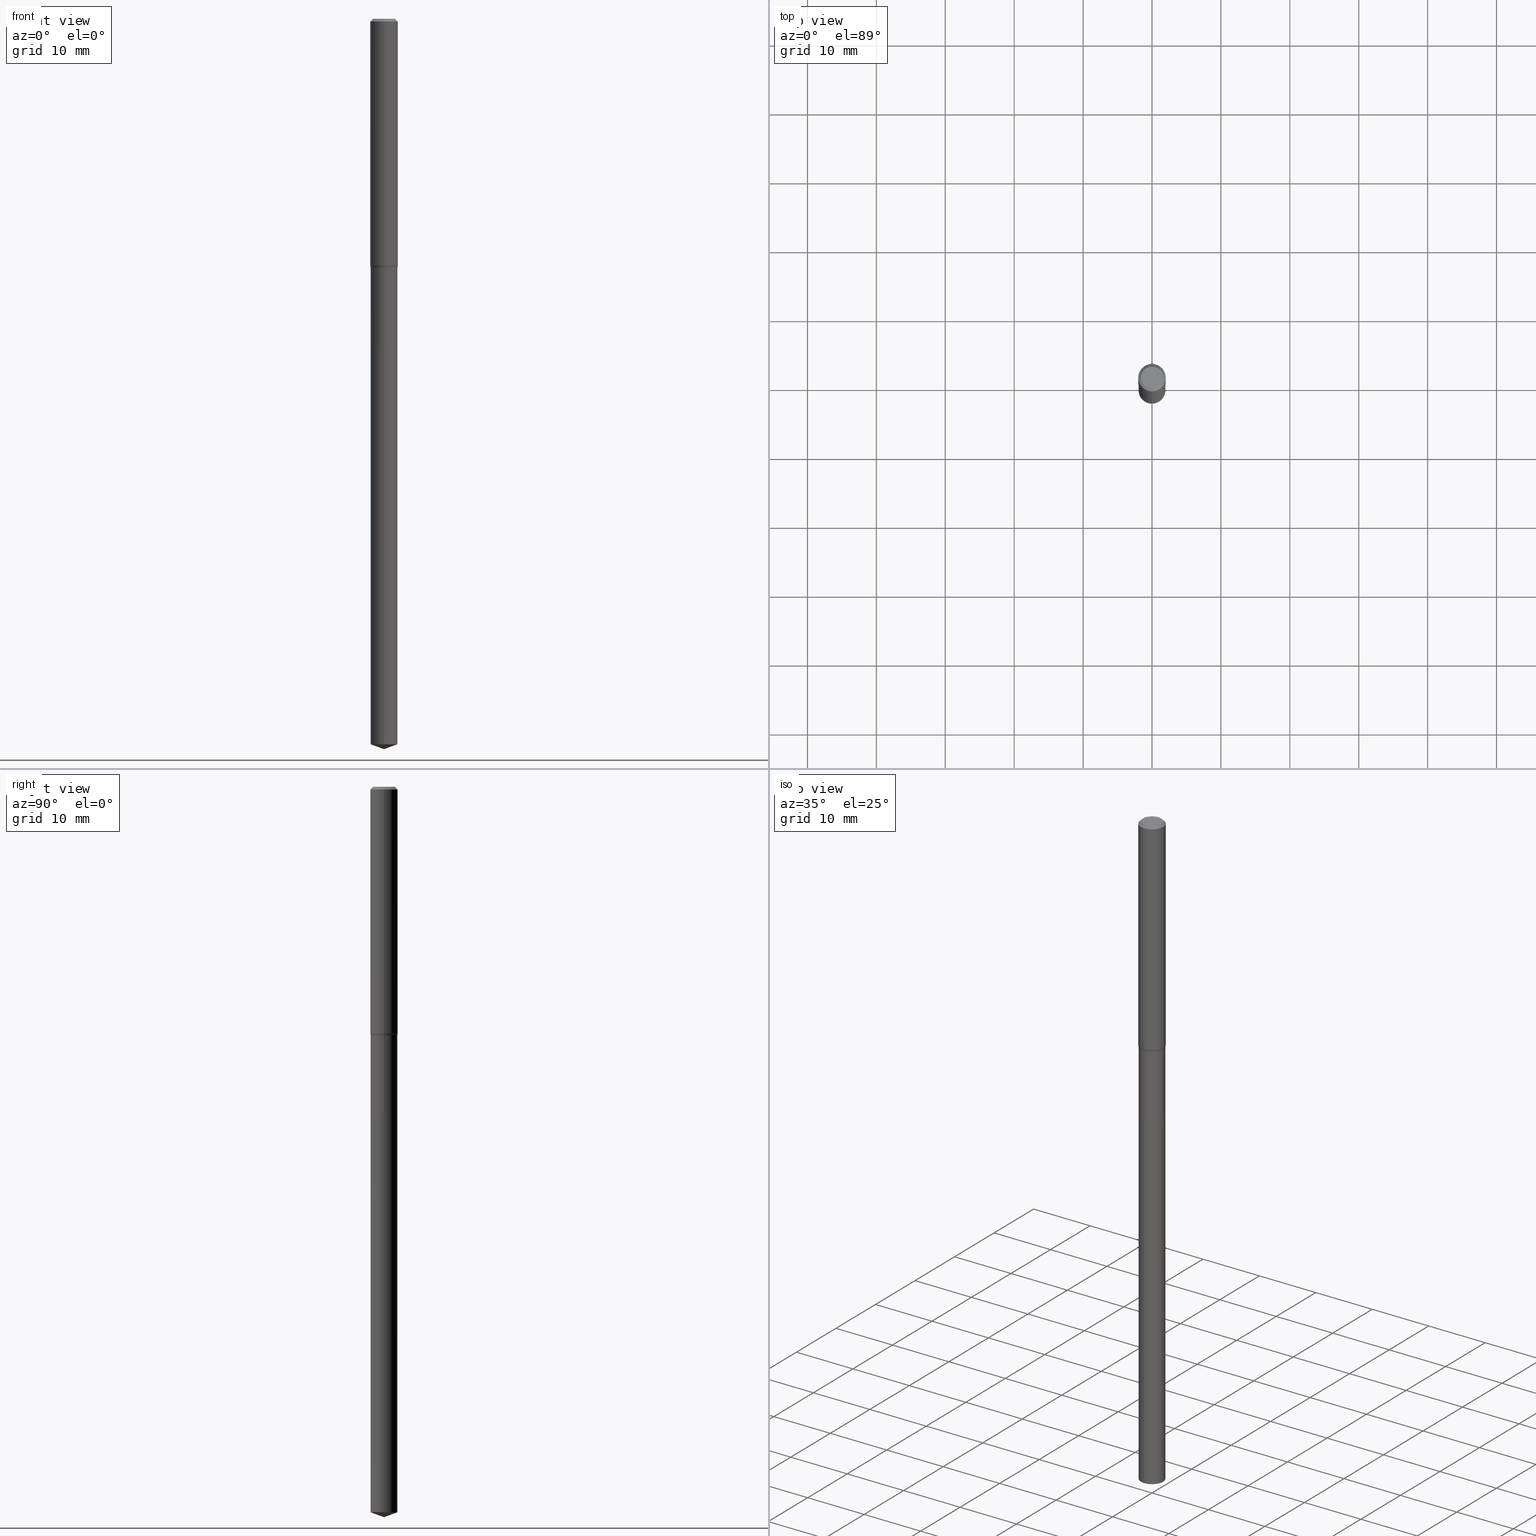
[diagram: canonical four-view strip — front | top / right | iso, engineering-drawing reading convention]
A machine part, canonical four-view strip (front | top / right | iso — engineering-drawing reading convention). The complete STEP part file that produces these views, byte-faithful:
ISO-10303-21;
HEADER;
FILE_DESCRIPTION (( 'STEP AP203' ),
    '1' );
FILE_NAME ('06060.STEP',
    '2024-04-23T19:11:56',
    ( '' ),
    ( '' ),
    'SwSTEP 2.0',
    'SolidWorks 2023',
    '' );
FILE_SCHEMA (( 'CONFIG_CONTROL_DESIGN' ));
ENDSEC;

DATA;
#1 = EDGE_CURVE ( 'NONE', #170, #132, #441, .T. ) ;
#2 = EDGE_LOOP ( 'NONE', ( #213, #395, #437, #322 ) ) ;
#3 = DIRECTION ( 'NONE',  ( -2.445468806185136597E-29, 3.491481338843145583E-15, 1.000000000000000000 ) ) ;
#4 = CC_DESIGN_DATE_AND_TIME_ASSIGNMENT ( #445, #174, ( #446 ) ) ;
#5 = AXIS2_PLACEMENT_3D ( 'NONE', #307, #48, #352 ) ;
#6 = CIRCLE ( 'NONE', #251, 0.07625000000000001221 ) ;
#7 = DIRECTION ( 'NONE',  ( 1.000000000000000000, -6.982962677686267499E-15, 4.876176775795935232E-29 ) ) ;
#8 = PRODUCT_DEFINITION_SHAPE ( 'NONE', 'NONE',  #446 ) ;
#9 = ADVANCED_FACE ( 'NONE', ( #155 ), #118, .T. ) ;
#10 = FACE_OUTER_BOUND ( 'NONE', #389, .T. ) ;
#11 = CARTESIAN_POINT ( 'NONE',  ( 4.563489339222081719E-29, -6.515453326415191210E-15, -1.866099999999999204 ) ) ;
#12 = DIRECTION ( 'NONE',  ( 1.000000000000000000, -6.982962677686265133E-15, 0.000000000000000000 ) ) ;
#13 = FACE_OUTER_BOUND ( 'NONE', #400, .T. ) ;
#14 = CIRCLE ( 'NONE', #223, 0.07875000000000016709 ) ;
#15 = ORIENTED_EDGE ( 'NONE', *, *, #54, .F. ) ;
#16 = DATE_AND_TIME ( #206, #212 ) ;
#17 = EDGE_LOOP ( 'NONE', ( #305, #157, #215 ) ) ;
#18 = APPROVAL ( #137, 'UNSPECIFIED' ) ;
#19 = ORIENTED_EDGE ( 'NONE', *, *, #246, .F. ) ;
#20 = PERSON_AND_ORGANIZATION ( #413, #91 ) ;
#21 = VERTEX_POINT ( 'NONE', #311 ) ;
#22 = AXIS2_PLACEMENT_3D ( 'NONE', #348, #345, #7 ) ;
#23 = LINE ( 'NONE', #60, #250 ) ;
#24 = APPROVAL_ROLE ( '' ) ;
#25 = APPROVAL ( #261, 'UNSPECIFIED' ) ;
#26 = CARTESIAN_POINT ( 'NONE',  ( 3.449176992623886773E-29, -4.924510618845209310E-15, -1.410435898384861053 ) ) ;
#27 = APPROVAL_ROLE ( '' ) ;
#28 = AXIS2_PLACEMENT_3D ( 'NONE', #404, #33, #108 ) ;
#29 = DIRECTION ( 'NONE',  ( 1.000000000000000000, -6.982962677686265922E-15, 0.000000000000000000 ) ) ;
#30 = UNCERTAINTY_MEASURE_WITH_UNIT (LENGTH_MEASURE( 1.000000000000000082E-05 ), #325, 'distance_accuracy_value', 'NONE');
#31 = DATE_TIME_ROLE ( 'classification_date' ) ;
#32 = CARTESIAN_POINT ( 'NONE',  ( 4.563489339222081719E-29, -6.515453326415191210E-15, -1.866099999999999204 ) ) ;
#33 = DIRECTION ( 'NONE',  ( -2.445468806185136597E-29, 3.491481338843145583E-15, 1.000000000000000000 ) ) ;
#34 = ORIENTED_EDGE ( 'NONE', *, *, #54, .T. ) ;
#35 = DIRECTION ( 'NONE',  ( -6.982962677686265133E-15, -1.000000000000000000, 3.559411066663534686E-15 ) ) ;
#36 = VECTOR ( 'NONE', #117, 39.37007874015748143 ) ;
#37 = CARTESIAN_POINT ( 'NONE',  ( -8.607162650711505623E-28, 1.228910246761990339E-13, 35.19687874015748008 ) ) ;
#38 = CC_DESIGN_PERSON_AND_ORGANIZATION_ASSIGNMENT ( #20, #126, ( #446 ) ) ;
#39 = DIRECTION ( 'NONE',  ( -2.438088387897960049E-29, 3.491481338843145188E-15, 1.000000000000000000 ) ) ;
#40 = ORIENTED_EDGE ( 'NONE', *, *, #297, .F. ) ;
#41 = CARTESIAN_POINT ( 'NONE',  ( 5.453415496959783512E-16, 0.07674999999998556588, -4.145265284520068150 ) ) ;
#42 = EDGE_CURVE ( 'NONE', #387, #194, #390, .T. ) ;
#43 = ORIENTED_EDGE ( 'NONE', *, *, #360, .T. ) ;
#44 = CIRCLE ( 'NONE', #66, 0.07675000000000001266 ) ;
#45 = CONICAL_SURFACE ( 'NONE', #230, 0.07625000000000001221, 0.7853981633975507526 ) ;
#46 = DIRECTION ( 'NONE',  ( -2.445435281437177479E-29, 3.491529348190333241E-15, 1.000000000000000000 ) ) ;
#47 = PLANE ( 'NONE',  #268 ) ;
#48 = DIRECTION ( 'NONE',  ( -2.445468806185136597E-29, 3.491481338843145583E-15, 1.000000000000000000 ) ) ;
#49 = CYLINDRICAL_SURFACE ( 'NONE', #263, 0.07674999999999997102 ) ;
#50 = AXIS2_PLACEMENT_3D ( 'NONE', #109, #159, #410 ) ;
#51 = VERTEX_POINT ( 'NONE', #346 ) ;
#52 = VECTOR ( 'NONE', #386, 39.37007874015748143 ) ;
#53 = PRODUCT_RELATED_PRODUCT_CATEGORY ( 'detail', '', ( #462 ) ) ;
#54 = EDGE_CURVE ( 'NONE', #170, #51, #23, .T. ) ;
#55 = AXIS2_PLACEMENT_3D ( 'NONE', #479, #450, #264 ) ;
#56 = CARTESIAN_POINT ( 'NONE',  ( 0.07674999999999994327, -5.486513775858115986E-15, -1.417899999999999716 ) ) ;
#57 = SECURITY_CLASSIFICATION ( '', '', #478 ) ;
#58 = CC_DESIGN_PERSON_AND_ORGANIZATION_ASSIGNMENT ( #328, #142, ( #83 ) ) ;
#59 = CARTESIAN_POINT ( 'NONE',  ( 4.713871149261278955E-47, -6.730158695841834933E-33, -1.927594061857933439E-18 ) ) ;
#60 = CARTESIAN_POINT ( 'NONE',  ( -0.07625000000000001221, -5.973664490398114535E-15, -1.866099999999999204 ) ) ;
#61 = CARTESIAN_POINT ( 'NONE',  ( 3.467430220289904224E-29, -4.950571390345695458E-15, -1.417899999999999716 ) ) ;
#62 = APPROVAL_DATE_TIME ( #334, #25 ) ;
#63 = ORIENTED_EDGE ( 'NONE', *, *, #145, .T. ) ;
#64 = DIRECTION ( 'NONE',  ( 1.000000000000000000, -6.982962677686271444E-15, 0.000000000000000000 ) ) ;
#65 = PERSON_AND_ORGANIZATION ( #413, #91 ) ;
#66 = AXIS2_PLACEMENT_3D ( 'NONE', #301, #375, #35 ) ;
#67 = CARTESIAN_POINT ( 'NONE',  ( -0.07875000000000016709, -4.364958214434130508E-15, -1.410435898384861053 ) ) ;
#68 = CIRCLE ( 'NONE', #139, 0.07674999999999994327 ) ;
#69 = EDGE_CURVE ( 'NONE', #347, #194, #367, .T. ) ;
#70 = CARTESIAN_POINT ( 'NONE',  ( -0.07674999999999994327, -4.405229840649818672E-15, -1.417899999999999716 ) ) ;
#71 = EDGE_CURVE ( 'NONE', #51, #421, #327, .T. ) ;
#72 = ORIENTED_EDGE ( 'NONE', *, *, #374, .T. ) ;
#73 = FACE_OUTER_BOUND ( 'NONE', #175, .T. ) ;
#74 = ORIENTED_EDGE ( 'NONE', *, *, #304, .T. ) ;
#75 = VECTOR ( 'NONE', #482, 39.37007874015748143 ) ;
#76 = CARTESIAN_POINT ( 'NONE',  ( 0.000000000000000000, 0.000000000000000000, 0.000000000000000000 ) ) ;
#77 = AXIS2_PLACEMENT_3D ( 'NONE', #316, #475, #280 ) ;
#78 = DIRECTION ( 'NONE',  ( -6.982962677686265133E-15, -1.000000000000000000, 3.559411066663534686E-15 ) ) ;
#79 = CARTESIAN_POINT ( 'NONE',  ( 0.07674999999999994327, -5.486513775858115986E-15, -1.417899999999999716 ) ) ;
#80 = ADVANCED_FACE ( 'NONE', ( #323 ), #94, .F. ) ;
#81 = DIRECTION ( 'NONE',  ( -2.445435281437177759E-29, 3.491529348190333241E-15, 1.000000000000000000 ) ) ;
#82 = CYLINDRICAL_SURFACE ( 'NONE', #355, 0.07675000000000001266 ) ;
#83 = PRODUCT_DEFINITION_FORMATION_WITH_SPECIFIED_SOURCE ( 'ANY', '', #462, .NOT_KNOWN. ) ;
#84 = LINE ( 'NONE', #465, #199 ) ;
#85 = CC_DESIGN_PERSON_AND_ORGANIZATION_ASSIGNMENT ( #331, #481, ( #83 ) ) ;
#86 = FACE_OUTER_BOUND ( 'NONE', #461, .T. ) ;
#87 = VERTEX_POINT ( 'NONE', #79 ) ;
#88 = DIRECTION ( 'NONE',  ( -2.445468806185136597E-29, 3.491481338843145583E-15, 1.000000000000000000 ) ) ;
#89 = ORIENTED_EDGE ( 'NONE', *, *, #448, .T. ) ;
#90 = APPLICATION_PROTOCOL_DEFINITION ( 'international standard', 'config_control_design', 1994, #110 ) ;
#91 = ORGANIZATION ( 'UNSPECIFIED', 'UNSPECIFIED', '' ) ;
#92 = LOCAL_TIME ( 15, 11, 56.00000000000000000, #295 ) ;
#93 = CARTESIAN_POINT ( 'NONE',  ( 0.07625000000000001221, -7.047904230588769520E-15, -1.866099999999999204 ) ) ;
#94 = PLANE ( 'NONE',  #396 ) ;
#95 = ORIENTED_EDGE ( 'NONE', *, *, #1, .T. ) ;
#96 = VECTOR ( 'NONE', #190, 39.37007874015748143 ) ;
#97 = EDGE_CURVE ( 'NONE', #183, #87, #144, .T. ) ;
#98 = ORIENTED_EDGE ( 'NONE', *, *, #480, .T. ) ;
#99 = AXIS2_PLACEMENT_3D ( 'NONE', #351, #200, #466 ) ;
#100 = EDGE_CURVE ( 'NONE', #194, #387, #259, .T. ) ;
#101 = ORIENTED_EDGE ( 'NONE', *, *, #226, .F. ) ;
#102 = CARTESIAN_POINT ( 'NONE',  ( -0.07625000000000001221, -5.971015263224003334E-15, -1.866099999999999204 ) ) ;
#103 = PERSON_AND_ORGANIZATION ( #413, #91 ) ;
#104 = FACE_OUTER_BOUND ( 'NONE', #332, .T. ) ;
#105 = CONICAL_SURFACE ( 'NONE', #329, 108.1684023407320154, 1.221730476396027276 ) ;
#106 = CARTESIAN_POINT ( 'NONE',  ( 0.07675000000000001266, -7.049649971258191813E-15, -1.865599999999999259 ) ) ;
#107 = CARTESIAN_POINT ( 'NONE',  ( 4.563489339222082280E-29, -6.515453326415192788E-15, -1.866099999999999426 ) ) ;
#108 = DIRECTION ( 'NONE',  ( 1.000000000000000000, -6.982962677686271444E-15, 0.000000000000000000 ) ) ;
#109 = CARTESIAN_POINT ( 'NONE',  ( 1.013704053821426034E-28, -1.447322580669358287E-14, -4.145265284520068150 ) ) ;
#110 = APPLICATION_CONTEXT ( 'configuration controlled 3d designs of mechanical parts and assemblies' ) ;
#111 = CONICAL_SURFACE ( 'NONE', #242, 0.07674999999999994327, 0.2617993877991501295 ) ;
#112 = DIRECTION ( 'NONE',  ( 2.445435281437177199E-29, -3.491529348190333241E-15, -1.000000000000000000 ) ) ;
#113 = AXIS2_PLACEMENT_3D ( 'NONE', #209, #281, #252 ) ;
#114 = PLANE ( 'NONE',  #341 ) ;
#115 = FACE_OUTER_BOUND ( 'NONE', #2, .T. ) ;
#116 = ORIENTED_EDGE ( 'NONE', *, *, #191, .T. ) ;
#117 = DIRECTION ( 'NONE',  ( -2.445435281437177759E-29, 3.491529348190333241E-15, 1.000000000000000000 ) ) ;
#118 = CONICAL_SURFACE ( 'NONE', #5, 0.07625000000000001221, 0.7853981633975507526 ) ;
#119 = AXIS2_PLACEMENT_3D ( 'NONE', #490, #151, #29 ) ;
#120 = VECTOR ( 'NONE', #289, 39.37007874015748854 ) ;
#121 = DIRECTION ( 'NONE',  ( 1.000000000000000000, -6.982962677686265133E-15, 0.000000000000000000 ) ) ;
#122 = VERTEX_POINT ( 'NONE', #335 ) ;
#123 = LINE ( 'NONE', #93, #276 ) ;
#124 = CC_DESIGN_DATE_AND_TIME_ASSIGNMENT ( #253, #31, ( #57 ) ) ;
#125 = ORIENTED_EDGE ( 'NONE', *, *, #370, .T. ) ;
#126 = PERSON_AND_ORGANIZATION_ROLE ( 'creator' ) ;
#127 = CONICAL_SURFACE ( 'NONE', #405, 108.1684023407320154, 1.221730476396027276 ) ;
#128 = EDGE_CURVE ( 'NONE', #21, #358, #333, .T. ) ;
#129 = DIRECTION ( 'NONE',  ( 0.2588190451025214611, 1.565188264969621573E-15, 0.9659258262890682012 ) ) ;
#130 = APPROVAL ( #431, 'UNSPECIFIED' ) ;
#131 =( GEOMETRIC_REPRESENTATION_CONTEXT ( 3 ) GLOBAL_UNCERTAINTY_ASSIGNED_CONTEXT ( ( #30 ) ) GLOBAL_UNIT_ASSIGNED_CONTEXT ( ( #325, #359, #248 ) ) REPRESENTATION_CONTEXT ( 'NONE', 'WORKASPACE' ) );
#132 = VERTEX_POINT ( 'NONE', #454 ) ;
#133 = ORIENTED_EDGE ( 'NONE', *, *, #448, .F. ) ;
#134 = ORIENTED_EDGE ( 'NONE', *, *, #42, .T. ) ;
#135 = DIRECTION ( 'NONE',  ( 0.7071067811866199593, -2.468850131083015945E-15, 0.7071067811864750752 ) ) ;
#136 = CONICAL_SURFACE ( 'NONE', #166, 0.07875000000000000056, 0.7853981633974452814 ) ;
#137 = APPROVAL_STATUS ( 'not_yet_approved' ) ;
#138 = APPLICATION_CONTEXT ( 'configuration controlled 3d designs of mechanical parts and assemblies' ) ;
#139 = AXIS2_PLACEMENT_3D ( 'NONE', #61, #438, #467 ) ;
#140 = COORDINATED_UNIVERSAL_TIME_OFFSET ( 5, 0, .BEHIND. ) ;
#141 = CYLINDRICAL_SURFACE ( 'NONE', #362, 0.07675000000000001266 ) ;
#142 = PERSON_AND_ORGANIZATION_ROLE ( 'design_supplier' ) ;
#143 = DIRECTION ( 'NONE',  ( -2.445468806185136597E-29, 3.491481338843145583E-15, 1.000000000000000000 ) ) ;
#144 = LINE ( 'NONE', #185, #96 ) ;
#145 = EDGE_CURVE ( 'NONE', #187, #21, #186, .T. ) ;
#146 = ORIENTED_EDGE ( 'NONE', *, *, #246, .T. ) ;
#147 = CARTESIAN_POINT ( 'NONE',  ( 9.427742298522557911E-47, -1.346031739168366987E-32, -3.855188123715866879E-18 ) ) ;
#148 = AXIS2_PLACEMENT_3D ( 'NONE', #270, #158, #388 ) ;
#149 = DIRECTION ( 'NONE',  ( 1.000000000000000000, -6.982962677686265922E-15, 4.875905316334701673E-29 ) ) ;
#150 = EDGE_LOOP ( 'NONE', ( #342, #134, #125, #19 ) ) ;
#151 = DIRECTION ( 'NONE',  ( -2.445468806185136597E-29, 3.491481338843145583E-15, 1.000000000000000000 ) ) ;
#152 = ORIENTED_EDGE ( 'NONE', *, *, #460, .F. ) ;
#153 = CARTESIAN_POINT ( 'NONE',  ( -5.359423855123753660E-16, -0.07675000000000652134, -1.866099999999999204 ) ) ;
#154 = FACE_OUTER_BOUND ( 'NONE', #208, .T. ) ;
#155 = FACE_OUTER_BOUND ( 'NONE', #198, .T. ) ;
#156 = LINE ( 'NONE', #233, #458 ) ;
#157 = ORIENTED_EDGE ( 'NONE', *, *, #433, .T. ) ;
#158 = DIRECTION ( 'NONE',  ( -2.445468806185136597E-29, 3.491481338843145583E-15, 1.000000000000000000 ) ) ;
#159 = DIRECTION ( 'NONE',  ( -2.445435281437177479E-29, 3.491529348190333241E-15, 1.000000000000000000 ) ) ;
#160 = LINE ( 'NONE', #302, #36 ) ;
#161 = ORIENTED_EDGE ( 'NONE', *, *, #360, .F. ) ;
#162 = CALENDAR_DATE ( 2024, 23, 4 ) ;
#163 = ADVANCED_FACE ( 'NONE', ( #337 ), #136, .T. ) ;
#164 = ORIENTED_EDGE ( 'NONE', *, *, #350, .F. ) ;
#165 = ADVANCED_FACE ( 'NONE', ( #73 ), #192, .T. ) ;
#166 = AXIS2_PLACEMENT_3D ( 'NONE', #377, #411, #296 ) ;
#167 = ORIENTED_EDGE ( 'NONE', *, *, #145, .F. ) ;
#168 = CC_DESIGN_APPROVAL ( #130, ( #446 ) ) ;
#169 = ADVANCED_FACE ( 'NONE', ( #409 ), #141, .T. ) ;
#170 = VERTEX_POINT ( 'NONE', #102 ) ;
#171 = DIRECTION ( 'NONE',  ( 1.000000000000000000, -6.982962677686271444E-15, 0.000000000000000000 ) ) ;
#172 = ORIENTED_EDGE ( 'NONE', *, *, #100, .T. ) ;
#173 = DIRECTION ( 'NONE',  ( -0.7071067811866199593, 7.493145998870616062E-15, 0.7071067811864750752 ) ) ;
#174 = DATE_TIME_ROLE ( 'creation_date' ) ;
#175 = EDGE_LOOP ( 'NONE', ( #444, #225, #152, #353 ) ) ;
#176 = AXIS2_PLACEMENT_3D ( 'NONE', #201, #273, #12 ) ;
#177 = DATE_AND_TIME ( #291, #428 ) ;
#178 = DIRECTION ( 'NONE',  ( -2.445468806185136597E-29, 3.491481338843145583E-15, 1.000000000000000000 ) ) ;
#179 = CARTESIAN_POINT ( 'NONE',  ( -0.07674999999999997102, 5.453415496958766868E-16, -3.775282681770638931E-30 ) ) ;
#180 = PERSON_AND_ORGANIZATION_ROLE ( 'classification_officer' ) ;
#181 = DIRECTION ( 'NONE',  ( -2.445468806185136597E-29, 3.491481338843145583E-15, 1.000000000000000000 ) ) ;
#182 = ADVANCED_FACE ( 'NONE', ( #373 ), #274, .T. ) ;
#183 = VERTEX_POINT ( 'NONE', #106 ) ;
#184 = DIRECTION ( 'NONE',  ( -2.445468806185136597E-29, 3.491481338843145583E-15, 1.000000000000000000 ) ) ;
#185 = CARTESIAN_POINT ( 'NONE',  ( 0.07674999999999997102, -5.359423855124207255E-16, 3.742465675423379404E-30 ) ) ;
#186 = CIRCLE ( 'NONE', #282, 0.06300000000000000044 ) ;
#187 = VERTEX_POINT ( 'NONE', #262 ) ;
#188 = CIRCLE ( 'NONE', #406, 0.07875000000000016709 ) ;
#189 = DIRECTION ( 'NONE',  ( 1.000000000000000000, -6.982962677686265922E-15, 4.876176775795935793E-29 ) ) ;
#190 = DIRECTION ( 'NONE',  ( -2.445468806185136877E-29, 3.491481338843145188E-15, 1.000000000000000000 ) ) ;
#191 = EDGE_CURVE ( 'NONE', #421, #196, #300, .T. ) ;
#192 = CYLINDRICAL_SURFACE ( 'NONE', #416, 0.07674999999999997102 ) ;
#193 = ADVANCED_BREP_SHAPE_REPRESENTATION ( '06060', ( #260, #423, #113 ), #131 ) ;
#194 = VERTEX_POINT ( 'NONE', #255 ) ;
#195 = CARTESIAN_POINT ( 'NONE',  ( 0.000000000000000000, 0.000000000000000000, 0.000000000000000000 ) ) ;
#196 = VERTEX_POINT ( 'NONE', #67 ) ;
#197 = CARTESIAN_POINT ( 'NONE',  ( -0.07875000000000000056, 4.949174797810136167E-16, -0.01575000000000009726 ) ) ;
#198 = EDGE_LOOP ( 'NONE', ( #15, #95, #98, #228 ) ) ;
#199 = VECTOR ( 'NONE', #81, 39.37007874015748143 ) ;
#200 = DIRECTION ( 'NONE',  ( -2.445468806185136597E-29, 3.491481338843145583E-15, 1.000000000000000000 ) ) ;
#201 = CARTESIAN_POINT ( 'NONE',  ( 4.563489339222081719E-29, -6.515453326415191210E-15, -1.866099999999999204 ) ) ;
#202 = CARTESIAN_POINT ( 'NONE',  ( 4.562266604818988918E-29, -6.513707585745769707E-15, -1.865599999999999259 ) ) ;
#203 = CYLINDRICAL_SURFACE ( 'NONE', #22, 0.07875000000000008382 ) ;
#204 = ADVANCED_FACE ( 'NONE', ( #104 ), #105, .T. ) ;
#205 = ORIENTED_EDGE ( 'NONE', *, *, #283, .F. ) ;
#206 = CALENDAR_DATE ( 2024, 23, 4 ) ;
#207 = ORIENTED_EDGE ( 'NONE', *, *, #69, .T. ) ;
#208 = EDGE_LOOP ( 'NONE', ( #43, #146 ) ) ;
#209 = CARTESIAN_POINT ( 'NONE',  ( 0.000000000000000000, 0.000000000000000000, 0.000000000000000000 ) ) ;
#210 = AXIS2_PLACEMENT_3D ( 'NONE', #278, #314, #239 ) ;
#211 = PERSON_AND_ORGANIZATION ( #413, #91 ) ;
#212 = LOCAL_TIME ( 15, 11, 56.00000000000000000, #366 ) ;
#213 = ORIENTED_EDGE ( 'NONE', *, *, #309, .F. ) ;
#214 = APPLICATION_PROTOCOL_DEFINITION ( 'international standard', 'config_control_design', 1994, #138 ) ;
#215 = ORIENTED_EDGE ( 'NONE', *, *, #100, .F. ) ;
#216 = CARTESIAN_POINT ( 'NONE',  ( -0.07875000000000000056, -1.930198320554914337E-15, -0.01575000000000009726 ) ) ;
#217 = CC_DESIGN_PERSON_AND_ORGANIZATION_ASSIGNMENT ( #211, #469, ( #462 ) ) ;
#218 = CARTESIAN_POINT ( 'NONE',  ( 1.020529051649362900E-28, -1.457085027586789575E-14, -4.173199999999999577 ) ) ;
#219 = APPROVAL_ROLE ( '' ) ;
#220 = AXIS2_PLACEMENT_3D ( 'NONE', #453, #369, #372 ) ;
#221 = ADVANCED_FACE ( 'NONE', ( #484 ), #111, .T. ) ;
#222 = DIRECTION ( 'NONE',  ( -2.445435281437177479E-29, 3.491529348190333241E-15, 1.000000000000000000 ) ) ;
#223 = AXIS2_PLACEMENT_3D ( 'NONE', #26, #88, #171 ) ;
#224 = DIRECTION ( 'NONE',  ( -0.2588190451025214611, 5.211531920934551042E-15, 0.9659258262890682012 ) ) ;
#225 = ORIENTED_EDGE ( 'NONE', *, *, #71, .T. ) ;
#226 = EDGE_CURVE ( 'NONE', #183, #51, #456, .T. ) ;
#227 = DIRECTION ( 'NONE',  ( 1.000000000000000000, -6.982962677686265133E-15, 0.000000000000000000 ) ) ;
#228 = ORIENTED_EDGE ( 'NONE', *, *, #304, .F. ) ;
#229 = DIRECTION ( 'NONE',  ( -6.982962677686265133E-15, -1.000000000000000000, 3.559411066663534686E-15 ) ) ;
#230 = AXIS2_PLACEMENT_3D ( 'NONE', #11, #308, #121 ) ;
#231 = DIRECTION ( 'NONE',  ( 1.000000000000000000, -6.982962677686265133E-15, 0.000000000000000000 ) ) ;
#232 = LINE ( 'NONE', #197, #52 ) ;
#233 = CARTESIAN_POINT ( 'NONE',  ( 0.07875000000000008382, -5.499083108677941345E-16, 3.839989210939303220E-30 ) ) ;
#234 = ADVANCED_FACE ( 'NONE', ( #488 ), #127, .T. ) ;
#235 = ORIENTED_EDGE ( 'NONE', *, *, #374, .F. ) ;
#236 = AXIS2_PLACEMENT_3D ( 'NONE', #202, #3, #310 ) ;
#237 = DIRECTION ( 'NONE',  ( -6.982962677686265133E-15, -1.000000000000000000, 3.559411066663534686E-15 ) ) ;
#238 = LINE ( 'NONE', #426, #392 ) ;
#239 = DIRECTION ( 'NONE',  ( -6.982962677686265133E-15, -1.000000000000000000, 0.000000000000000000 ) ) ;
#240 = ORIENTED_EDGE ( 'NONE', *, *, #422, .F. ) ;
#241 = CARTESIAN_POINT ( 'NONE',  ( 5.453415496959785484E-16, 0.07674999999999349010, -1.866099999999999870 ) ) ;
#242 = AXIS2_PLACEMENT_3D ( 'NONE', #298, #258, #227 ) ;
#243 = EDGE_LOOP ( 'NONE', ( #284, #473, #427, #317 ) ) ;
#244 = DIRECTION ( 'NONE',  ( -2.445468806185136597E-29, 3.491481338843145583E-15, 1.000000000000000000 ) ) ;
#245 = EDGE_LOOP ( 'NONE', ( #336, #116, #133, #240 ) ) ;
#246 = EDGE_CURVE ( 'NONE', #457, #313, #44, .T. ) ;
#247 = DIRECTION ( 'NONE',  ( 1.000000000000000000, -6.982962677686265133E-15, 0.000000000000000000 ) ) ;
#248 =( NAMED_UNIT ( * ) SI_UNIT ( $, .STERADIAN. ) SOLID_ANGLE_UNIT ( ) );
#249 = ORIENTED_EDGE ( 'NONE', *, *, #42, .F. ) ;
#250 = VECTOR ( 'NONE', #173, 39.37007874015748143 ) ;
#251 = AXIS2_PLACEMENT_3D ( 'NONE', #32, #181, #231 ) ;
#252 = DIRECTION ( 'NONE',  ( 1.000000000000000000, 0.000000000000000000, 0.000000000000000000 ) ) ;
#253 = DATE_AND_TIME ( #443, #269 ) ;
#254 = ORIENTED_EDGE ( 'NONE', *, *, #128, .F. ) ;
#255 = CARTESIAN_POINT ( 'NONE',  ( -5.359423855123197513E-16, -0.07675000000001448719, -4.145265284520068150 ) ) ;
#256 = EDGE_CURVE ( 'NONE', #279, #358, #339, .T. ) ;
#257 = CALENDAR_DATE ( 2024, 23, 4 ) ;
#258 = DIRECTION ( 'NONE',  ( -2.445468806185136597E-29, 3.491481338843145583E-15, 1.000000000000000000 ) ) ;
#259 = CIRCLE ( 'NONE', #50, 0.07675000000000001266 ) ;
#260 = MANIFOLD_SOLID_BREP ( 'Body-Move/Copy2[1]', #382 ) ;
#261 = APPROVAL_STATUS ( 'not_yet_approved' ) ;
#262 = CARTESIAN_POINT ( 'NONE',  ( -0.06300000000000000044, 4.674220642376242452E-16, -3.855188123719040041E-18 ) ) ;
#263 = AXIS2_PLACEMENT_3D ( 'NONE', #195, #381, #306 ) ;
#264 = DIRECTION ( 'NONE',  ( 1.000000000000000000, -6.982962677686265133E-15, 0.000000000000000000 ) ) ;
#265 = DIRECTION ( 'NONE',  ( -6.982962677686265922E-15, -1.000000000000000000, 3.475157955500766757E-15 ) ) ;
#266 = ORIENTED_EDGE ( 'NONE', *, *, #408, .T. ) ;
#267 = DIRECTION ( 'NONE',  ( 6.982962677686265922E-15, 1.000000000000000000, -3.491529348190333241E-15 ) ) ;
#268 = AXIS2_PLACEMENT_3D ( 'NONE', #272, #112, #267 ) ;
#269 = LOCAL_TIME ( 15, 11, 56.00000000000000000, #293 ) ;
#270 = CARTESIAN_POINT ( 'NONE',  ( 0.000000000000000000, 0.000000000000000000, 0.000000000000000000 ) ) ;
#271 = EDGE_CURVE ( 'NONE', #196, #122, #188, .T. ) ;
#272 = CARTESIAN_POINT ( 'NONE',  ( 4.563489339222082280E-29, -6.515453326415192788E-15, -1.866099999999999426 ) ) ;
#273 = DIRECTION ( 'NONE',  ( -2.445468806185136597E-29, 3.491481338843145583E-15, 1.000000000000000000 ) ) ;
#274 = CONICAL_SURFACE ( 'NONE', #55, 0.07674999999999994327, 0.2617993877991501295 ) ;
#275 = DIRECTION ( 'NONE',  ( -2.445468806185136877E-29, 3.491481338843145188E-15, 1.000000000000000000 ) ) ;
#276 = VECTOR ( 'NONE', #135, 39.37007874015748143 ) ;
#277 = DIRECTION ( 'NONE',  ( 1.000000000000000000, -6.982962677686265922E-15, 4.876176775795935793E-29 ) ) ;
#278 = CARTESIAN_POINT ( 'NONE',  ( 1.013704053821426034E-28, -1.447322580669358287E-14, -4.145265284520068150 ) ) ;
#279 = VERTEX_POINT ( 'NONE', #216 ) ;
#280 = DIRECTION ( 'NONE',  ( -1.000000000000000000, 6.982962677686265922E-15, 0.000000000000000000 ) ) ;
#281 = DIRECTION ( 'NONE',  ( 0.000000000000000000, 0.000000000000000000, 1.000000000000000000 ) ) ;
#282 = AXIS2_PLACEMENT_3D ( 'NONE', #147, #143, #149 ) ;
#283 = EDGE_CURVE ( 'NONE', #21, #187, #417, .T. ) ;
#284 = ORIENTED_EDGE ( 'NONE', *, *, #191, .F. ) ;
#285 = FACE_OUTER_BOUND ( 'NONE', #487, .T. ) ;
#286 = EDGE_LOOP ( 'NONE', ( #172, #489, #161, #288 ) ) ;
#287 = LINE ( 'NONE', #434, #120 ) ;
#288 = ORIENTED_EDGE ( 'NONE', *, *, #370, .F. ) ;
#289 = DIRECTION ( 'NONE',  ( 6.676917655467957874E-15, 0.9396926207859083169, 0.3420201433256685464 ) ) ;
#290 = AXIS2_PLACEMENT_3D ( 'NONE', #474, #244, #247 ) ;
#291 = CALENDAR_DATE ( 2024, 23, 4 ) ;
#292 = ORIENTED_EDGE ( 'NONE', *, *, #97, .T. ) ;
#293 = COORDINATED_UNIVERSAL_TIME_OFFSET ( 5, 0, .BEHIND. ) ;
#294 = DIRECTION ( 'NONE',  ( -2.445435281437177479E-29, 3.491529348190333241E-15, 1.000000000000000000 ) ) ;
#295 = COORDINATED_UNIVERSAL_TIME_OFFSET ( 5, 0, .BEHIND. ) ;
#296 = DIRECTION ( 'NONE',  ( -1.000000000000000000, 6.982962677686265922E-15, 0.000000000000000000 ) ) ;
#297 = EDGE_CURVE ( 'NONE', #132, #170, #6, .T. ) ;
#298 = CARTESIAN_POINT ( 'NONE',  ( 3.467430220289904224E-29, -4.950571390345695458E-15, -1.417899999999999716 ) ) ;
#299 = CIRCLE ( 'NONE', #99, 0.07875000000000000056 ) ;
#300 = LINE ( 'NONE', #70, #476 ) ;
#301 = CARTESIAN_POINT ( 'NONE',  ( 4.563489339222082280E-29, -6.515453326415192788E-15, -1.866099999999999426 ) ) ;
#302 = CARTESIAN_POINT ( 'NONE',  ( 5.453415496959225393E-16, 0.07674999999999349010, -1.866099999999999870 ) ) ;
#303 = APPROVAL_PERSON_ORGANIZATION ( #103, #25, #219 ) ;
#304 = EDGE_CURVE ( 'NONE', #51, #183, #312, .T. ) ;
#305 = ORIENTED_EDGE ( 'NONE', *, *, #69, .F. ) ;
#306 = DIRECTION ( 'NONE',  ( 1.000000000000000000, -6.982962677686265922E-15, 4.876176775795935793E-29 ) ) ;
#307 = CARTESIAN_POINT ( 'NONE',  ( 4.563489339222081719E-29, -6.515453326415191210E-15, -1.866099999999999204 ) ) ;
#308 = DIRECTION ( 'NONE',  ( -2.445468806185136597E-29, 3.491481338843145583E-15, 1.000000000000000000 ) ) ;
#309 = EDGE_CURVE ( 'NONE', #196, #279, #238, .T. ) ;
#310 = DIRECTION ( 'NONE',  ( 1.000000000000000000, -6.982962677686271444E-15, 0.000000000000000000 ) ) ;
#311 = CARTESIAN_POINT ( 'NONE',  ( 0.06300000000000000044, -5.137332111354472216E-16, -3.855188123712532709E-18 ) ) ;
#312 = CIRCLE ( 'NONE', #236, 0.07675000000000001266 ) ;
#313 = VERTEX_POINT ( 'NONE', #153 ) ;
#314 = DIRECTION ( 'NONE',  ( -2.445435281437177479E-29, 3.491529348190333241E-15, 1.000000000000000000 ) ) ;
#315 = ADVANCED_FACE ( 'NONE', ( #13 ), #114, .F. ) ;
#316 = CARTESIAN_POINT ( 'NONE',  ( 3.851613369741613486E-31, -5.499083108677987691E-17, -0.01575000000000009726 ) ) ;
#317 = ORIENTED_EDGE ( 'NONE', *, *, #271, .F. ) ;
#318 = APPROVAL_DATE_TIME ( #16, #130 ) ;
#319 = ADVANCED_FACE ( 'NONE', ( #86 ), #349, .T. ) ;
#320 = CIRCLE ( 'NONE', #290, 0.07674999999999994327 ) ;
#321 = LINE ( 'NONE', #56, #330 ) ;
#322 = ORIENTED_EDGE ( 'NONE', *, *, #256, .F. ) ;
#323 = FACE_OUTER_BOUND ( 'NONE', #452, .T. ) ;
#324 = ORIENTED_EDGE ( 'NONE', *, *, #283, .T. ) ;
#325 =( CONVERSION_BASED_UNIT ( 'INCH', #440 ) LENGTH_UNIT ( ) NAMED_UNIT ( #451 ) );
#326 = EDGE_CURVE ( 'NONE', #387, #457, #160, .T. ) ;
#327 = LINE ( 'NONE', #179, #485 ) ;
#328 = PERSON_AND_ORGANIZATION ( #413, #91 ) ;
#329 = AXIS2_PLACEMENT_3D ( 'NONE', #37, #340, #447 ) ;
#330 = VECTOR ( 'NONE', #129, 39.37007874015747433 ) ;
#331 = PERSON_AND_ORGANIZATION ( #413, #91 ) ;
#332 = EDGE_LOOP ( 'NONE', ( #407, #207, #249 ) ) ;
#333 = LINE ( 'NONE', #415, #75 ) ;
#334 = DATE_AND_TIME ( #257, #92 ) ;
#335 = CARTESIAN_POINT ( 'NONE',  ( 0.07875000000000016709, -5.474418929713005022E-15, -1.410435898384861053 ) ) ;
#336 = ORIENTED_EDGE ( 'NONE', *, *, #460, .T. ) ;
#337 = FACE_OUTER_BOUND ( 'NONE', #412, .T. ) ;
#338 = CLOSED_SHELL ( 'NONE', ( #414, #163, #319, #182, #165, #379, #221, #384, #464, #80, #315, #9 ) ) ;
#339 = CIRCLE ( 'NONE', #119, 0.07875000000000000056 ) ;
#340 = DIRECTION ( 'NONE',  ( -2.445435281437177479E-29, 3.491529348190333241E-15, 1.000000000000000000 ) ) ;
#341 = AXIS2_PLACEMENT_3D ( 'NONE', #429, #39, #277 ) ;
#342 = ORIENTED_EDGE ( 'NONE', *, *, #326, .F. ) ;
#343 = CARTESIAN_POINT ( 'NONE',  ( -8.607162650711505623E-28, 1.228910246761990339E-13, 35.19687874015748008 ) ) ;
#344 = ORIENTED_EDGE ( 'NONE', *, *, #297, .T. ) ;
#345 = DIRECTION ( 'NONE',  ( -2.445468806185136597E-29, 3.491481338843145583E-15, 1.000000000000000000 ) ) ;
#346 = CARTESIAN_POINT ( 'NONE',  ( -0.07675000000000001266, -5.186797938349855402E-15, -1.865599999999999259 ) ) ;
#347 = VERTEX_POINT ( 'NONE', #463 ) ;
#348 = CARTESIAN_POINT ( 'NONE',  ( 0.000000000000000000, 0.000000000000000000, 0.000000000000000000 ) ) ;
#349 = CYLINDRICAL_SURFACE ( 'NONE', #148, 0.07875000000000008382 ) ;
#350 = EDGE_CURVE ( 'NONE', #122, #358, #156, .T. ) ;
#351 = CARTESIAN_POINT ( 'NONE',  ( 3.851613369741613486E-31, -5.499083108677987691E-17, -0.01575000000000009726 ) ) ;
#352 = DIRECTION ( 'NONE',  ( 1.000000000000000000, -6.982962677686265133E-15, 0.000000000000000000 ) ) ;
#353 = ORIENTED_EDGE ( 'NONE', *, *, #97, .F. ) ;
#354 = CARTESIAN_POINT ( 'NONE',  ( -0.07674999999999994327, -5.186797938349855402E-15, -1.417899999999999716 ) ) ;
#355 = AXIS2_PLACEMENT_3D ( 'NONE', #419, #46, #78 ) ;
#356 = CC_DESIGN_APPROVAL ( #25, ( #57 ) ) ;
#357 = ORIENTED_EDGE ( 'NONE', *, *, #471, .F. ) ;
#358 = VERTEX_POINT ( 'NONE', #420 ) ;
#359 =( NAMED_UNIT ( * ) PLANE_ANGLE_UNIT ( ) SI_UNIT ( $, .RADIAN. ) );
#360 = EDGE_CURVE ( 'NONE', #313, #457, #442, .T. ) ;
#361 = MECHANICAL_CONTEXT ( 'NONE', #110, 'mechanical' ) ;
#362 = AXIS2_PLACEMENT_3D ( 'NONE', #107, #294, #229 ) ;
#363 = APPROVAL_PERSON_ORGANIZATION ( #368, #18, #27 ) ;
#364 = PERSON_AND_ORGANIZATION ( #413, #91 ) ;
#365 = DIRECTION ( 'NONE',  ( 2.438088387897960049E-29, -3.491481338843145188E-15, -1.000000000000000000 ) ) ;
#366 = COORDINATED_UNIVERSAL_TIME_OFFSET ( 5, 0, .BEHIND. ) ;
#367 = LINE ( 'NONE', #218, #383 ) ;
#368 = PERSON_AND_ORGANIZATION ( #413, #91 ) ;
#369 = DIRECTION ( 'NONE',  ( -2.445468806185136597E-29, 3.491481338843145583E-15, 1.000000000000000000 ) ) ;
#370 = EDGE_CURVE ( 'NONE', #194, #313, #84, .T. ) ;
#371 = DIRECTION ( 'NONE',  ( -6.561838499445192963E-15, -0.9396926207859059854, 0.3420201433256752077 ) ) ;
#372 = DIRECTION ( 'NONE',  ( 1.000000000000000000, -6.982962677686265922E-15, 4.875905316334701673E-29 ) ) ;
#373 = FACE_OUTER_BOUND ( 'NONE', #245, .T. ) ;
#374 = EDGE_CURVE ( 'NONE', #187, #279, #232, .T. ) ;
#375 = DIRECTION ( 'NONE',  ( -2.445435281437177479E-29, 3.491529348190333241E-15, 1.000000000000000000 ) ) ;
#376 = ORIENTED_EDGE ( 'NONE', *, *, #408, .F. ) ;
#377 = CARTESIAN_POINT ( 'NONE',  ( 3.851613369741613486E-31, -5.499083108677987691E-17, -0.01575000000000009726 ) ) ;
#378 = AXIS2_PLACEMENT_3D ( 'NONE', #385, #459, #237 ) ;
#379 = ADVANCED_FACE ( 'NONE', ( #380 ), #49, .T. ) ;
#380 = FACE_OUTER_BOUND ( 'NONE', #432, .T. ) ;
#381 = DIRECTION ( 'NONE',  ( -2.445468806185136597E-29, 3.491481338843145583E-15, 1.000000000000000000 ) ) ;
#382 = CLOSED_SHELL ( 'NONE', ( #402, #234, #204, #169, #394 ) ) ;
#383 = VECTOR ( 'NONE', #371, 39.37007874015748854 ) ;
#384 = ADVANCED_FACE ( 'NONE', ( #115 ), #203, .T. ) ;
#385 = CARTESIAN_POINT ( 'NONE',  ( 4.563489339222082280E-29, -6.515453326415192788E-15, -1.866099999999999426 ) ) ;
#386 = DIRECTION ( 'NONE',  ( -0.7071067811865453523, 2.468850131082234184E-15, -0.7071067811865496822 ) ) ;
#387 = VERTEX_POINT ( 'NONE', #41 ) ;
#388 = DIRECTION ( 'NONE',  ( 1.000000000000000000, -6.982962677686267499E-15, 4.876176775795935232E-29 ) ) ;
#389 = EDGE_LOOP ( 'NONE', ( #344, #34, #101, #430 ) ) ;
#390 = CIRCLE ( 'NONE', #210, 0.07675000000000001266 ) ;
#391 =( LENGTH_UNIT ( ) NAMED_UNIT ( * ) SI_UNIT ( $, .METRE. ) );
#392 = VECTOR ( 'NONE', #455, 39.37007874015748143 ) ;
#393 = CC_DESIGN_SECURITY_CLASSIFICATION ( #57, ( #83 ) ) ;
#394 = ADVANCED_FACE ( 'NONE', ( #154 ), #47, .F. ) ;
#395 = ORIENTED_EDGE ( 'NONE', *, *, #271, .T. ) ;
#396 = AXIS2_PLACEMENT_3D ( 'NONE', #59, #365, #425 ) ;
#397 = APPROVAL_PERSON_ORGANIZATION ( #364, #130, #24 ) ;
#398 = ORIENTED_EDGE ( 'NONE', *, *, #128, .T. ) ;
#399 = APPROVAL_DATE_TIME ( #177, #18 ) ;
#400 = EDGE_LOOP ( 'NONE', ( #40, #439 ) ) ;
#401 = CARTESIAN_POINT ( 'NONE',  ( 3.449176992623886773E-29, -4.924510618845209310E-15, -1.410435898384861053 ) ) ;
#402 = ADVANCED_FACE ( 'NONE', ( #424 ), #82, .T. ) ;
#403 = CC_DESIGN_PERSON_AND_ORGANIZATION_ASSIGNMENT ( #65, #180, ( #57 ) ) ;
#404 = CARTESIAN_POINT ( 'NONE',  ( 4.562266604818988918E-29, -6.513707585745769707E-15, -1.865599999999999259 ) ) ;
#405 = AXIS2_PLACEMENT_3D ( 'NONE', #343, #222, #265 ) ;
#406 = AXIS2_PLACEMENT_3D ( 'NONE', #401, #184, #64 ) ;
#407 = ORIENTED_EDGE ( 'NONE', *, *, #433, .F. ) ;
#408 = EDGE_CURVE ( 'NONE', #358, #279, #299, .T. ) ;
#409 = FACE_OUTER_BOUND ( 'NONE', #150, .T. ) ;
#410 = DIRECTION ( 'NONE',  ( -6.982962677686265133E-15, -1.000000000000000000, 0.000000000000000000 ) ) ;
#411 = DIRECTION ( 'NONE',  ( 2.445468806185136597E-29, -3.491481338843145583E-15, -1.000000000000000000 ) ) ;
#412 = EDGE_LOOP ( 'NONE', ( #205, #398, #266, #235 ) ) ;
#413 = PERSON ( 'UNSPECIFIED', 'UNSPECIFIED', 'UNSPECIFIED', ('UNSPECIFIED'), ('UNSPECIFIED'), ('UNSPECIFIED') ) ;
#414 = ADVANCED_FACE ( 'NONE', ( #10 ), #45, .T. ) ;
#415 = CARTESIAN_POINT ( 'NONE',  ( 0.07875000000000000056, -5.952550484112880131E-16, -0.01575000000000009726 ) ) ;
#416 = AXIS2_PLACEMENT_3D ( 'NONE', #76, #178, #189 ) ;
#417 = CIRCLE ( 'NONE', #220, 0.06300000000000000044 ) ;
#418 = LOCAL_TIME ( 15, 11, 56.00000000000000000, #470 ) ;
#419 = CARTESIAN_POINT ( 'NONE',  ( 4.563489339222082280E-29, -6.515453326415192788E-15, -1.866099999999999426 ) ) ;
#420 = CARTESIAN_POINT ( 'NONE',  ( 0.07875000000000000056, -6.048991419545733705E-16, -0.01575000000000009726 ) ) ;
#421 = VERTEX_POINT ( 'NONE', #354 ) ;
#422 = EDGE_CURVE ( 'NONE', #87, #122, #321, .T. ) ;
#423 = MANIFOLD_SOLID_BREP ( 'Body-Move/Copy2[2]', #338 ) ;
#424 = FACE_OUTER_BOUND ( 'NONE', #286, .T. ) ;
#425 = DIRECTION ( 'NONE',  ( -1.000000000000000000, 6.982962677686265922E-15, -4.876176775795935793E-29 ) ) ;
#426 = CARTESIAN_POINT ( 'NONE',  ( -0.07875000000000008382, 5.595524044110794920E-16, -3.873661383575742696E-30 ) ) ;
#427 = ORIENTED_EDGE ( 'NONE', *, *, #422, .T. ) ;
#428 = LOCAL_TIME ( 15, 11, 56.00000000000000000, #140 ) ;
#429 = CARTESIAN_POINT ( 'NONE',  ( 9.232139332030064488E-29, 1.703191863413727708E-16, -1.866099999999999426 ) ) ;
#430 = ORIENTED_EDGE ( 'NONE', *, *, #480, .F. ) ;
#431 = APPROVAL_STATUS ( 'not_yet_approved' ) ;
#432 = EDGE_LOOP ( 'NONE', ( #483, #74, #292, #357 ) ) ;
#433 = EDGE_CURVE ( 'NONE', #347, #387, #287, .T. ) ;
#434 = CARTESIAN_POINT ( 'NONE',  ( 1.020541673472200396E-28, -1.457067109538232101E-14, -4.173199999999999577 ) ) ;
#435 = DIRECTION ( 'NONE',  ( -2.445468806185136877E-29, 3.491481338843145188E-15, 1.000000000000000000 ) ) ;
#436 = ORIENTED_EDGE ( 'NONE', *, *, #309, .T. ) ;
#437 = ORIENTED_EDGE ( 'NONE', *, *, #350, .T. ) ;
#438 = DIRECTION ( 'NONE',  ( -2.445468806185136597E-29, 3.491481338843145583E-15, 1.000000000000000000 ) ) ;
#439 = ORIENTED_EDGE ( 'NONE', *, *, #1, .F. ) ;
#440 = LENGTH_MEASURE_WITH_UNIT ( LENGTH_MEASURE( 0.02539999999999999897 ), #391 );
#441 = CIRCLE ( 'NONE', #176, 0.07625000000000001221 ) ;
#442 = CIRCLE ( 'NONE', #378, 0.07675000000000001266 ) ;
#443 = CALENDAR_DATE ( 2024, 23, 4 ) ;
#444 = ORIENTED_EDGE ( 'NONE', *, *, #226, .T. ) ;
#445 = DATE_AND_TIME ( #162, #418 ) ;
#446 = PRODUCT_DEFINITION ( 'UNKNOWN', '', #83, #477 ) ;
#447 = DIRECTION ( 'NONE',  ( -6.982962677686265922E-15, -1.000000000000000000, 3.475157955500766757E-15 ) ) ;
#448 = EDGE_CURVE ( 'NONE', #122, #196, #14, .T. ) ;
#449 = SHAPE_DEFINITION_REPRESENTATION ( #8, #193 ) ;
#450 = DIRECTION ( 'NONE',  ( -2.445468806185136597E-29, 3.491481338843145583E-15, 1.000000000000000000 ) ) ;
#451 = DIMENSIONAL_EXPONENTS ( 1.000000000000000000, 0.000000000000000000, 0.000000000000000000, 0.000000000000000000, 0.000000000000000000, 0.000000000000000000, 0.000000000000000000 ) ;
#452 = EDGE_LOOP ( 'NONE', ( #63, #324 ) ) ;
#453 = CARTESIAN_POINT ( 'NONE',  ( 9.427742298522557911E-47, -1.346031739168366987E-32, -3.855188123715866879E-18 ) ) ;
#454 = CARTESIAN_POINT ( 'NONE',  ( 0.07625000000000001221, -7.047904230588769520E-15, -1.866099999999999204 ) ) ;
#455 = DIRECTION ( 'NONE',  ( -2.445468806185136877E-29, 3.491481338843145188E-15, 1.000000000000000000 ) ) ;
#456 = CIRCLE ( 'NONE', #28, 0.07675000000000001266 ) ;
#457 = VERTEX_POINT ( 'NONE', #241 ) ;
#458 = VECTOR ( 'NONE', #275, 39.37007874015748143 ) ;
#459 = DIRECTION ( 'NONE',  ( -2.445435281437177479E-29, 3.491529348190333241E-15, 1.000000000000000000 ) ) ;
#460 = EDGE_CURVE ( 'NONE', #87, #421, #320, .T. ) ;
#461 = EDGE_LOOP ( 'NONE', ( #89, #436, #376, #164 ) ) ;
#462 = PRODUCT ( '06060', '06060', '', ( #361 ) ) ;
#463 = CARTESIAN_POINT ( 'NONE',  ( 1.020529051649362900E-28, -1.457085027586789575E-14, -4.173199999999999577 ) ) ;
#464 = ADVANCED_FACE ( 'NONE', ( #285 ), #472, .T. ) ;
#465 = CARTESIAN_POINT ( 'NONE',  ( -5.359423855123753660E-16, -0.07675000000000652134, -1.866099999999999204 ) ) ;
#466 = DIRECTION ( 'NONE',  ( 1.000000000000000000, -6.982962677686265922E-15, 0.000000000000000000 ) ) ;
#467 = DIRECTION ( 'NONE',  ( 1.000000000000000000, -6.982962677686265133E-15, 0.000000000000000000 ) ) ;
#468 = ORIENTED_EDGE ( 'NONE', *, *, #256, .T. ) ;
#469 = PERSON_AND_ORGANIZATION_ROLE ( 'design_owner' ) ;
#470 = COORDINATED_UNIVERSAL_TIME_OFFSET ( 5, 0, .BEHIND. ) ;
#471 = EDGE_CURVE ( 'NONE', #421, #87, #68, .T. ) ;
#472 = CONICAL_SURFACE ( 'NONE', #77, 0.07875000000000000056, 0.7853981633974452814 ) ;
#473 = ORIENTED_EDGE ( 'NONE', *, *, #471, .T. ) ;
#474 = CARTESIAN_POINT ( 'NONE',  ( 3.467430220289904224E-29, -4.950571390345695458E-15, -1.417899999999999716 ) ) ;
#475 = DIRECTION ( 'NONE',  ( 2.445468806185136597E-29, -3.491481338843145583E-15, -1.000000000000000000 ) ) ;
#476 = VECTOR ( 'NONE', #224, 39.37007874015747433 ) ;
#477 = DESIGN_CONTEXT ( 'detailed design', #138, 'design' ) ;
#478 = SECURITY_CLASSIFICATION_LEVEL ( 'unclassified' ) ;
#479 = CARTESIAN_POINT ( 'NONE',  ( 3.467430220289904224E-29, -4.950571390345695458E-15, -1.417899999999999716 ) ) ;
#480 = EDGE_CURVE ( 'NONE', #132, #183, #123, .T. ) ;
#481 = PERSON_AND_ORGANIZATION_ROLE ( 'creator' ) ;
#482 = DIRECTION ( 'NONE',  ( 0.7071067811865453523, -7.319954787623248157E-15, -0.7071067811865496822 ) ) ;
#483 = ORIENTED_EDGE ( 'NONE', *, *, #71, .F. ) ;
#484 = FACE_OUTER_BOUND ( 'NONE', #243, .T. ) ;
#485 = VECTOR ( 'NONE', #435, 39.37007874015748143 ) ;
#486 = CC_DESIGN_APPROVAL ( #18, ( #83 ) ) ;
#487 = EDGE_LOOP ( 'NONE', ( #254, #167, #72, #468 ) ) ;
#488 = FACE_OUTER_BOUND ( 'NONE', #17, .T. ) ;
#489 = ORIENTED_EDGE ( 'NONE', *, *, #326, .T. ) ;
#490 = CARTESIAN_POINT ( 'NONE',  ( 3.851613369741613486E-31, -5.499083108677987691E-17, -0.01575000000000009726 ) ) ;
ENDSEC;
END-ISO-10303-21;
